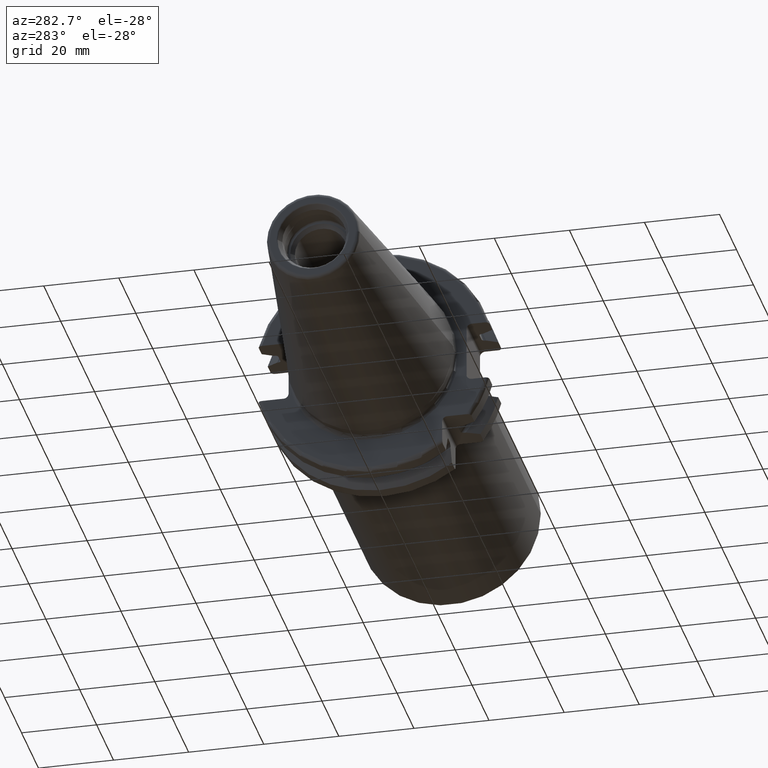
[diagram: clean part render]
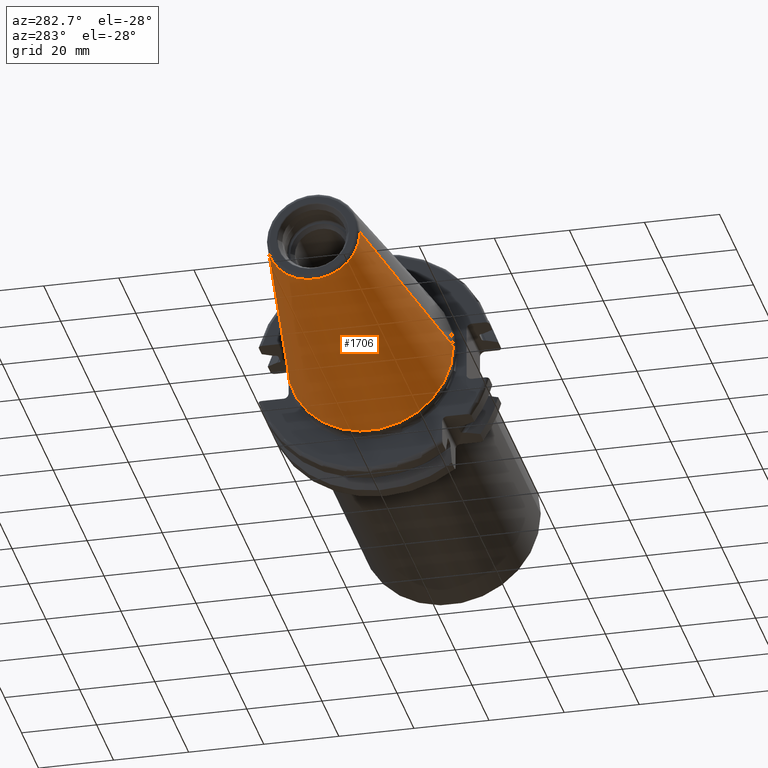
[diagram: same view with one face highlighted and labeled with its STEP entity id]
A machine part, auxiliary view. The second image highlights one B-rep face of the part: STEP entity #1706.
In plain terms, the highlighted conical surface has half-angle 8.298 deg.
Its self-contained STEP definition (entity closure, byte-faithful):
#32=CARTESIAN_POINT('',(-6.743710273571E1,0.E0,0.E0));
#33=DIRECTION('',(-1.E0,0.E0,0.E0));
#34=DIRECTION('',(0.E0,1.E0,0.E0));
#35=AXIS2_PLACEMENT_3D('',#32,#33,#34);
#47=DIRECTION('',(-9.895312636440E-1,-1.443186691705E-1,0.E0));
#48=VECTOR('',#47,6.765568998391E1);
#49=CARTESIAN_POINT('',(-4.896823332305E-1,2.215358204157E1,0.E0));
#50=LINE('',#49,#48);
#51=DIRECTION('',(-9.895312636440E-1,1.443186691705E-1,0.E0));
#52=VECTOR('',#51,6.765568998391E1);
#53=CARTESIAN_POINT('',(-4.896823332305E-1,-2.215358204157E1,0.E0));
#54=LINE('',#53,#52);
#55=CARTESIAN_POINT('',(-4.896823332305E-1,0.E0,0.E0));
#56=DIRECTION('',(-1.E0,0.E0,0.E0));
#57=DIRECTION('',(0.E0,1.E0,0.E0));
#58=AXIS2_PLACEMENT_3D('',#55,#56,#57);
#1351=CARTESIAN_POINT('',(-6.743710273571E1,1.238960290128E1,0.E0));
#1353=VERTEX_POINT('',#1351);
#1355=CARTESIAN_POINT('',(-6.743710273571E1,-1.238960290128E1,0.E0));
#1357=VERTEX_POINT('',#1355);
#1419=CARTESIAN_POINT('',(-4.896823332305E-1,2.215358204157E1,0.E0));
#1420=VERTEX_POINT('',#1419);
#1421=CARTESIAN_POINT('',(-4.896823332305E-1,-2.215358204157E1,0.E0));
#1422=VERTEX_POINT('',#1421);
#1694=CARTESIAN_POINT('',(-3.396339253447E1,0.E0,0.E0));
#1695=DIRECTION('',(1.E0,0.E0,0.E0));
#1696=DIRECTION('',(0.E0,-1.E0,0.E0));
#1697=AXIS2_PLACEMENT_3D('',#1694,#1695,#1696);
#1698=CONICAL_SURFACE('',#1697,1.727159247143E1,8.297826828206E0);
#1699=ORIENTED_EDGE('',*,*,#1684,.T.);
#1700=ORIENTED_EDGE('',*,*,#1661,.T.);
#1701=ORIENTED_EDGE('',*,*,#1688,.F.);
#1703=ORIENTED_EDGE('',*,*,#1702,.F.);
#1704=EDGE_LOOP('',(#1699,#1700,#1701,#1703));
#1705=FACE_OUTER_BOUND('',#1704,.F.);
#1706=ADVANCED_FACE('',(#1705),#1698,.T.);
#36=CIRCLE('',#35,1.238960290128E1);
#59=CIRCLE('',#58,2.215358204157E1);
#1661=EDGE_CURVE('',#1353,#1357,#36,.T.);
#1684=EDGE_CURVE('',#1420,#1353,#50,.T.);
#1688=EDGE_CURVE('',#1422,#1357,#54,.T.);
#1702=EDGE_CURVE('',#1420,#1422,#59,.T.);